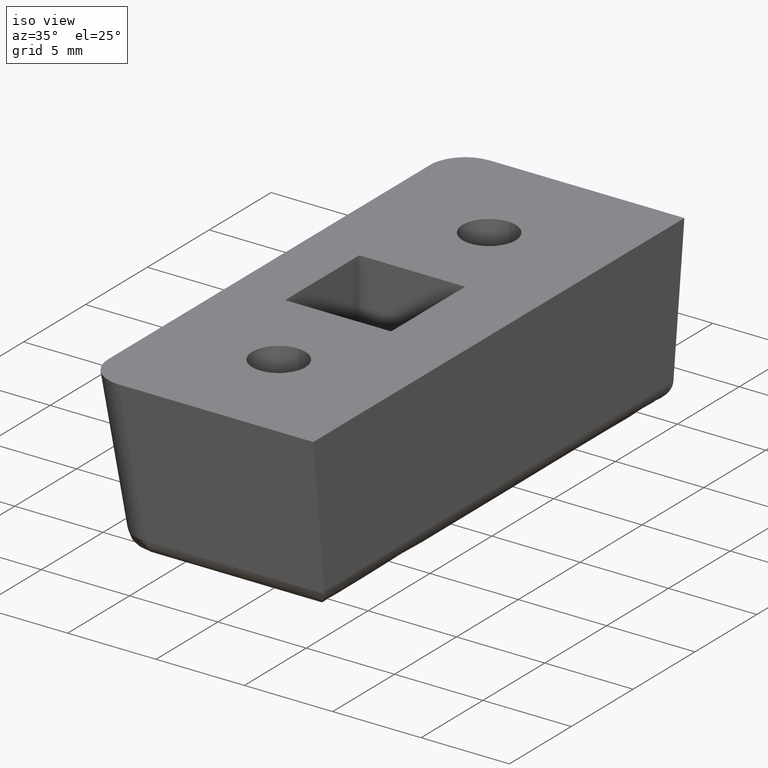
[diagram: clean part render]
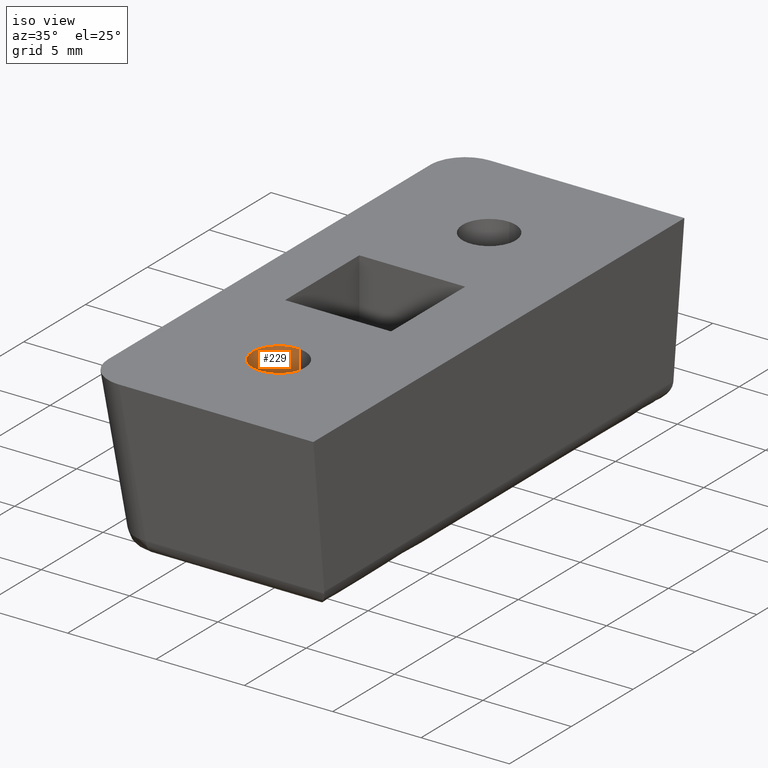
[diagram: same view with one face highlighted and labeled with its STEP entity id]
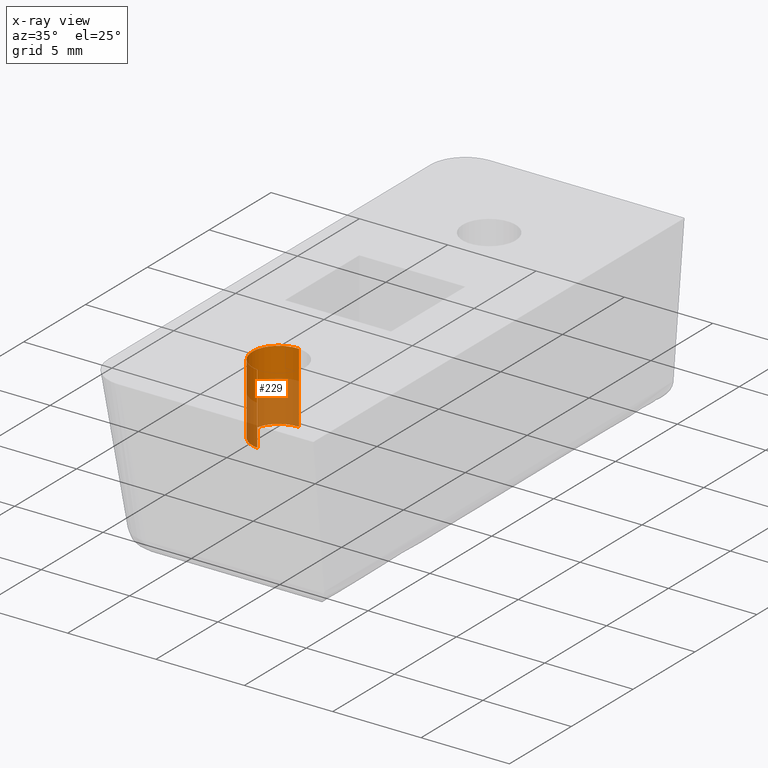
[diagram: x-ray of the same camera — body ghosted, the highlighted face saturated]
A machine part, iso view. The second image highlights one B-rep face of the part: STEP entity #229.
The next image is the same camera in x-ray: the body ghosted, the highlighted face saturated — about 56% of this face is hidden behind the body in this view.
In plain terms, the highlighted face is a freeform B-spline surface patch.
Its self-contained STEP definition (entity closure, byte-faithful):
#66=CARTESIAN_POINT('',(-182.677051351996910,-17.989514289544100,34.500000000000000));
#67=VERTEX_POINT('',#66);
#85=CARTESIAN_POINT('',(-182.677051351996910,-17.989514289544100,38.500000000000000));
#86=VERTEX_POINT('',#85);
#87=CARTESIAN_POINT('',(-182.677051351996910,-17.989514289544100,34.500000000000000));
#88=CARTESIAN_POINT('',(-182.677051351996910,-17.989514289544100,38.500000000000000));
#89=QUASI_UNIFORM_CURVE('',1,(#87,#88),.UNSPECIFIED.,.F.,.U.);
#90=EDGE_CURVE('',#67,#86,#89,.T.);
#109=CARTESIAN_POINT('',(-182.408427190619700,-15.002797802371971,38.500000000000000));
#110=VERTEX_POINT('',#109);
#124=CARTESIAN_POINT('',(-182.408427190619700,-15.002797802371971,34.500000000000000));
#125=VERTEX_POINT('',#124);
#126=CARTESIAN_POINT('',(-182.408427190619700,-15.002797802371971,34.500000000000000));
#127=CARTESIAN_POINT('',(-182.408427190619700,-15.002797802371971,38.500000000000000));
#128=QUASI_UNIFORM_CURVE('',1,(#126,#127),.UNSPECIFIED.,.F.,.U.);
#129=EDGE_CURVE('',#125,#110,#128,.T.);
#147=CARTESIAN_POINT('',(-182.408427190697690,-15.002797802367200,34.399999999999999));
#148=CARTESIAN_POINT('',(-183.905629388330480,-14.911224993064913,34.400000000000006));
#149=CARTESIAN_POINT('',(-183.997202197632790,-16.408427190697719,34.399999999999999));
#150=CARTESIAN_POINT('',(-184.083679295098790,-17.822315236259243,34.399999999999999));
#151=CARTESIAN_POINT('',(-182.677051351985110,-17.989514289545500,34.399999999999999));
#152=CARTESIAN_POINT('',(-182.408427190697690,-15.002797802367200,38.602499999999999));
#153=CARTESIAN_POINT('',(-183.905629388330480,-14.911224993064913,38.602499999999999));
#154=CARTESIAN_POINT('',(-183.997202197632790,-16.408427190697719,38.602499999999999));
#155=CARTESIAN_POINT('',(-184.083679295098790,-17.822315236259243,38.602500000000006));
#156=CARTESIAN_POINT('',(-182.677051351985110,-17.989514289545500,38.602499999999999));
#164=(BOUNDED_SURFACE()B_SPLINE_SURFACE(2,1,((#147,#152),(#148,#153),(#149,#154),(#150,#155),(#151,#156)),.UNSPECIFIED.,.F.,.F.,.U.)B_SPLINE_SURFACE_WITH_KNOTS((3,2,3),(2,2),(0.0,1.570796326794897,3.078760800517997),(0.0,4.202500000000002),.UNSPECIFIED.)GEOMETRIC_REPRESENTATION_ITEM()RATIONAL_B_SPLINE_SURFACE(((1.0,1.0),(0.707106781186548,0.707106781186548),(1.0,1.0),(0.718822509939086,0.718822509939086),(0.977505800795127,0.977505800795127)))REPRESENTATION_ITEM('')SURFACE());
#165=CARTESIAN_POINT('',(-184.0,-16.500000000000000,34.500000000000000));
#166=VERTEX_POINT('',#165);
#167=CARTESIAN_POINT('',(-184.0,-16.500000000000000,34.500000000000000));
#168=CARTESIAN_POINT('',(-184.000000000000060,-17.832261788905868,34.500000000000000));
#169=CARTESIAN_POINT('',(-182.677051351996880,-17.989514289544108,34.500000000000000));
#177=(BOUNDED_CURVE()B_SPLINE_CURVE(2,(#167,#168,#169),.UNSPECIFIED.,.F.,.U.)B_SPLINE_CURVE_WITH_KNOTS((3,3),(0.0,0.229562473512975),.UNSPECIFIED.)CURVE()GEOMETRIC_REPRESENTATION_ITEM()RATIONAL_B_SPLINE_CURVE((1.0,0.731050832856028,0.956026754182654))REPRESENTATION_ITEM(''));
#178=EDGE_CURVE('',#166,#67,#177,.T.);
#179=ORIENTED_EDGE('',*,*,#178,.F.);
#180=CARTESIAN_POINT('',(-182.408427190619760,-15.002797802371978,34.500000000000000));
#181=CARTESIAN_POINT('',(-182.454170854973880,-15.000000000000004,34.499999999999993));
#182=CARTESIAN_POINT('',(-182.500000000000000,-15.0,34.500000000000000));
#183=CARTESIAN_POINT('',(-183.999999999999910,-15.000000000000009,34.500000000000000));
#184=CARTESIAN_POINT('',(-184.0,-16.500000000000000,34.500000000000000));
#192=(BOUNDED_CURVE()B_SPLINE_CURVE(2,(#180,#181,#182,#183,#184),.UNSPECIFIED.,.F.,.U.)B_SPLINE_CURVE_WITH_KNOTS((3,2,3),(0.739332962223985,0.750000000000000,1.0),.UNSPECIFIED.)CURVE()GEOMETRIC_REPRESENTATION_ITEM()RATIONAL_B_SPLINE_CURVE((0.976072041634660,0.987502787882313,1.0,0.707106781186548,1.0))REPRESENTATION_ITEM(''));
#193=EDGE_CURVE('',#125,#166,#192,.T.);
#194=ORIENTED_EDGE('',*,*,#193,.F.);
#195=ORIENTED_EDGE('',*,*,#129,.T.);
#196=CARTESIAN_POINT('',(-184.0,-16.500000000000000,38.500000000000000));
#197=VERTEX_POINT('',#196);
#198=CARTESIAN_POINT('',(-182.408427190619760,-15.002797802371978,38.500000000000000));
#199=CARTESIAN_POINT('',(-182.454170854973880,-15.000000000000004,38.500000000000000));
#200=CARTESIAN_POINT('',(-182.500000000000000,-15.0,38.500000000000000));
#201=CARTESIAN_POINT('',(-183.999999999999910,-15.000000000000009,38.500000000000000));
#202=CARTESIAN_POINT('',(-184.0,-16.500000000000000,38.500000000000000));
#210=(BOUNDED_CURVE()B_SPLINE_CURVE(2,(#198,#199,#200,#201,#202),.UNSPECIFIED.,.F.,.U.)B_SPLINE_CURVE_WITH_KNOTS((3,2,3),(0.739332962223985,0.750000000000000,1.0),.UNSPECIFIED.)CURVE()GEOMETRIC_REPRESENTATION_ITEM()RATIONAL_B_SPLINE_CURVE((0.976072041634660,0.987502787882313,1.0,0.707106781186548,1.0))REPRESENTATION_ITEM(''));
#211=EDGE_CURVE('',#110,#197,#210,.T.);
#212=ORIENTED_EDGE('',*,*,#211,.T.);
#213=CARTESIAN_POINT('',(-184.0,-16.500000000000000,38.500000000000000));
#214=CARTESIAN_POINT('',(-184.000000000000060,-17.832261788905868,38.500000000000000));
#215=CARTESIAN_POINT('',(-182.677051351996880,-17.989514289544108,38.500000000000000));
#223=(BOUNDED_CURVE()B_SPLINE_CURVE(2,(#213,#214,#215),.UNSPECIFIED.,.F.,.U.)B_SPLINE_CURVE_WITH_KNOTS((3,3),(0.0,0.229562473512975),.UNSPECIFIED.)CURVE()GEOMETRIC_REPRESENTATION_ITEM()RATIONAL_B_SPLINE_CURVE((1.0,0.731050832856028,0.956026754182654))REPRESENTATION_ITEM(''));
#224=EDGE_CURVE('',#197,#86,#223,.T.);
#225=ORIENTED_EDGE('',*,*,#224,.T.);
#226=ORIENTED_EDGE('',*,*,#90,.F.);
#227=EDGE_LOOP('',(#179,#194,#195,#212,#225,#226));
#228=FACE_OUTER_BOUND('',#227,.T.);
#229=ADVANCED_FACE('',(#228),#164,.F.);